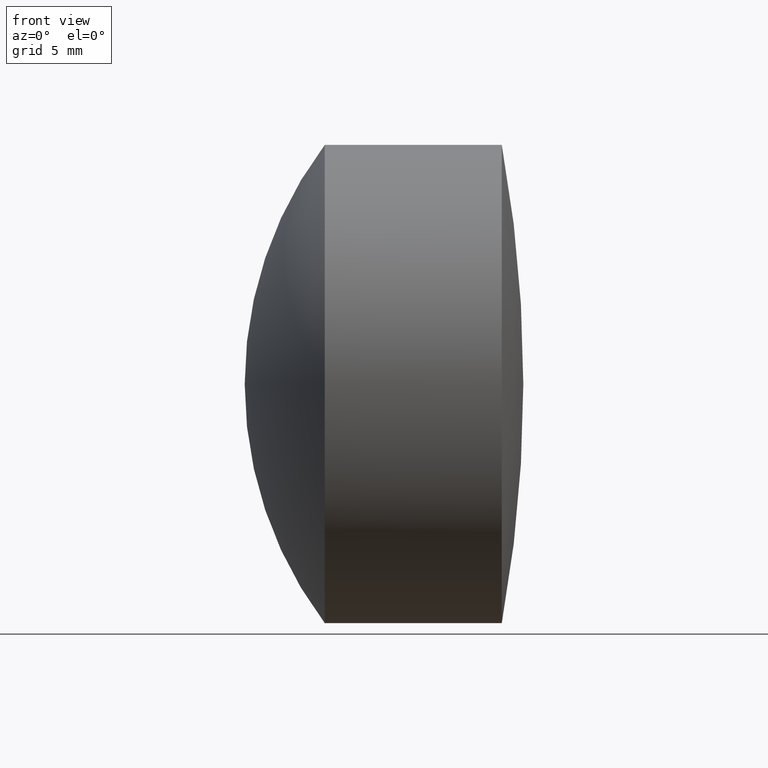
[diagram: clean part render]
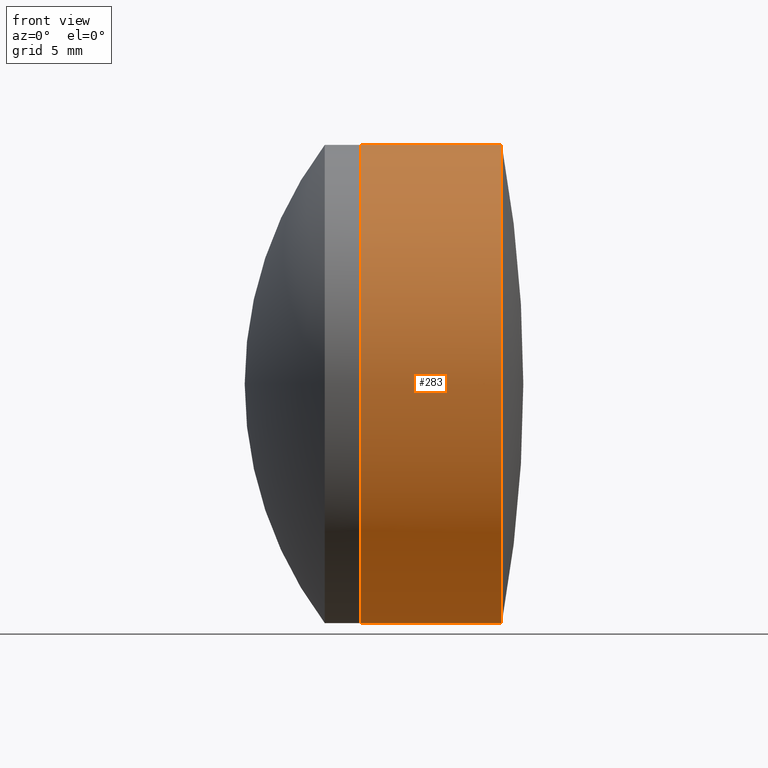
[diagram: same view with one face highlighted and labeled with its STEP entity id]
A machine part, front view. The second image highlights one B-rep face of the part: STEP entity #283.
In plain terms, the highlighted cylindrical surface (partial cylindrical patch) has radius 12.7 mm, axis along (-1, -0, -0).
Its self-contained STEP definition (entity closure, byte-faithful):
#43 = ORIENTED_EDGE ( 'NONE', *, *, #87, .T. ) ;
#50 = CIRCLE ( 'NONE', #214, 12.69999999999999800 ) ;
#65 = DIRECTION ( 'NONE',  ( -1.000000000000000000, -0.0000000000000000000, -0.0000000000000000000 ) ) ;
#66 = DIRECTION ( 'NONE',  ( 0.0000000000000000000, 0.0000000000000000000, 1.000000000000000000 ) ) ;
#74 = CARTESIAN_POINT ( 'NONE',  ( -0.5519199926577972300, 0.0000000000000000000, 0.0000000000000000000 ) ) ;
#75 = AXIS2_PLACEMENT_3D ( 'NONE', #74, #184, #308 ) ;
#81 = CARTESIAN_POINT ( 'NONE',  ( 24.22712334066837100, 0.0000000000000000000, -12.69999999999997400 ) ) ;
#83 = CIRCLE ( 'NONE', #260, 12.69999999999999900 ) ;
#87 = EDGE_CURVE ( 'NONE', #306, #222, #50, .T. ) ;
#95 = DIRECTION ( 'NONE',  ( 0.0000000000000000000, 0.0000000000000000000, 1.000000000000000000 ) ) ;
#101 = DIRECTION ( 'NONE',  ( -1.000000000000000000, -0.0000000000000000000, -0.0000000000000000000 ) ) ;
#106 = CARTESIAN_POINT ( 'NONE',  ( 24.22712334066836700, 0.0000000000000000000, 0.0000000000000000000 ) ) ;
#138 = DIRECTION ( 'NONE',  ( -1.000000000000000000, -0.0000000000000000000, -0.0000000000000000000 ) ) ;
#145 = CYLINDRICAL_SURFACE ( 'NONE', #75, 12.69999999999999900 ) ;
#158 = ORIENTED_EDGE ( 'NONE', *, *, #259, .T. ) ;
#161 = EDGE_CURVE ( 'NONE', #226, #321, #83, .T. ) ;
#167 = EDGE_LOOP ( 'NONE', ( #286, #43, #158, #332 ) ) ;
#176 = VECTOR ( 'NONE', #65, 1000.000000000000000 ) ;
#184 = DIRECTION ( 'NONE',  ( -1.000000000000000000, -0.0000000000000000000, -0.0000000000000000000 ) ) ;
#192 = CARTESIAN_POINT ( 'NONE',  ( 16.75446555327505400, 0.0000000000000000000, 0.0000000000000000000 ) ) ;
#201 = CARTESIAN_POINT ( 'NONE',  ( 16.75446555327505400, -1.555301434917138400E-015, 12.69999999999999900 ) ) ;
#214 = AXIS2_PLACEMENT_3D ( 'NONE', #106, #138, #95 ) ;
#222 = VERTEX_POINT ( 'NONE', #258 ) ;
#226 = VERTEX_POINT ( 'NONE', #249 ) ;
#236 = CARTESIAN_POINT ( 'NONE',  ( -0.5519199926577972300, 1.555301434917138400E-015, -12.69999999999999900 ) ) ;
#246 = LINE ( 'NONE', #339, #176 ) ;
#249 = CARTESIAN_POINT ( 'NONE',  ( 16.75446555327505400, 0.0000000000000000000, -12.69999999999999900 ) ) ;
#258 = CARTESIAN_POINT ( 'NONE',  ( 24.22712334066837100, -1.555301434917135700E-015, 12.69999999999997400 ) ) ;
#259 = EDGE_CURVE ( 'NONE', #222, #321, #246, .T. ) ;
#260 = AXIS2_PLACEMENT_3D ( 'NONE', #192, #294, #66 ) ;
#277 = EDGE_CURVE ( 'NONE', #306, #226, #316, .T. ) ;
#283 = ADVANCED_FACE ( 'NONE', ( #337 ), #145, .T. ) ;
#286 = ORIENTED_EDGE ( 'NONE', *, *, #277, .F. ) ;
#294 = DIRECTION ( 'NONE',  ( -1.000000000000000000, -0.0000000000000000000, -0.0000000000000000000 ) ) ;
#306 = VERTEX_POINT ( 'NONE', #81 ) ;
#308 = DIRECTION ( 'NONE',  ( 0.0000000000000000000, 0.0000000000000000000, 1.000000000000000000 ) ) ;
#316 = LINE ( 'NONE', #236, #326 ) ;
#321 = VERTEX_POINT ( 'NONE', #201 ) ;
#326 = VECTOR ( 'NONE', #101, 1000.000000000000000 ) ;
#332 = ORIENTED_EDGE ( 'NONE', *, *, #161, .F. ) ;
#337 = FACE_OUTER_BOUND ( 'NONE', #167, .T. ) ;
#339 = CARTESIAN_POINT ( 'NONE',  ( -0.5519199926577972300, 0.0000000000000000000, 12.69999999999999900 ) ) ;